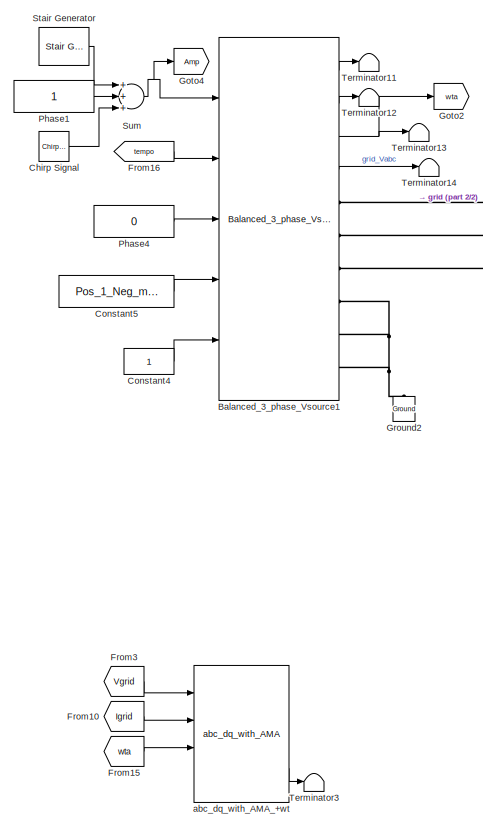
[diagram: root canvas - part 1/2, left side, full height]
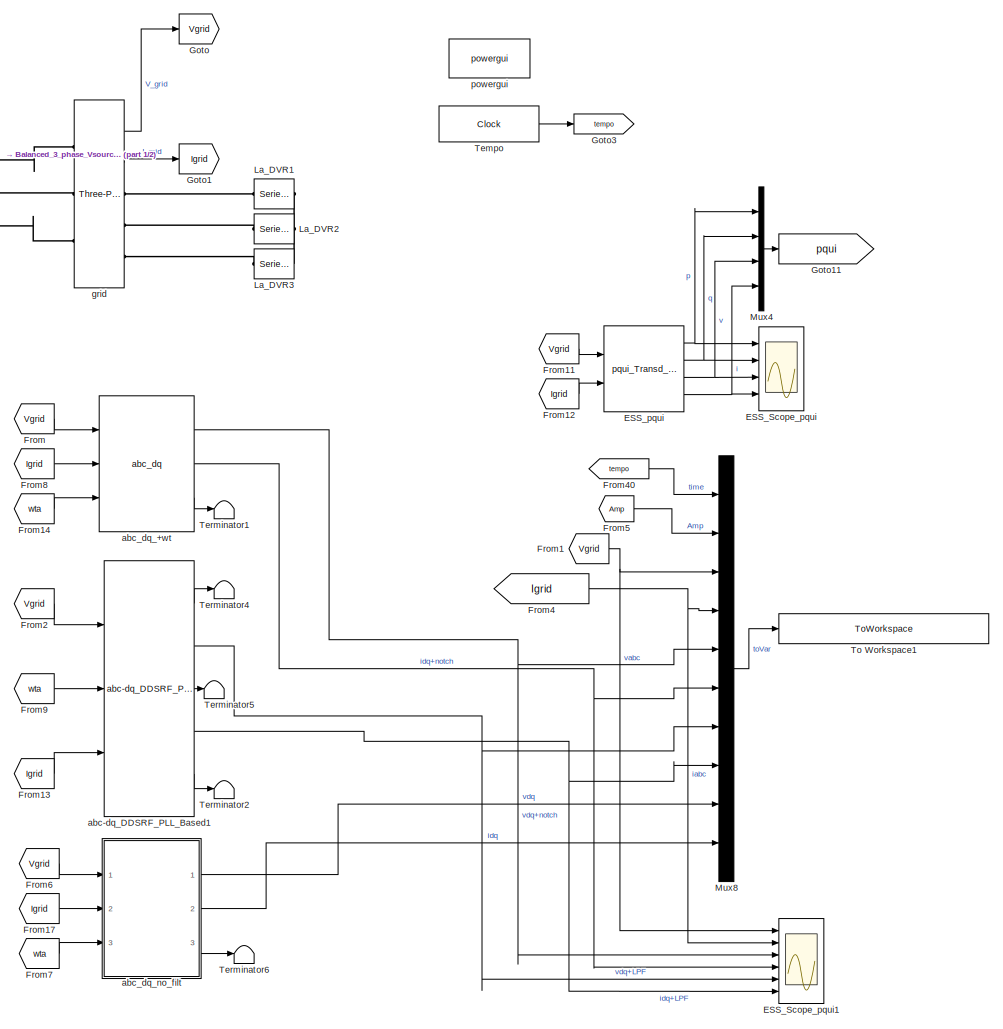
[diagram: root canvas - part 2/2, right side, full height]
MODEL slx_557372324c3f
KIND model
CONFIG AbsTol = auto
CONFIG EnableMultiTasking = off
CONFIG FixedStep = auto
CONFIG MaxStep = auto
CONFIG MinStep = auto
CONFIG RelTol = 1e-3
CONFIG SampleTimeConstraint = Unconstrained
CONFIG Solver = VariableStepAuto
CONFIG SolverName = VariableStepAuto
CONFIG StartTime = 0.0
CONFIG StopTime = Ttot
BLOCK [Reference] Balanced_3_phase_Vsource1  REF=PhD_Library/Offshore_Oil_and_Wind/Balanced_3_phase_Vsource
  Ports = [5, 4, 0, 0, 0, 0, 6]
  SourceBlock = PhD_Library/Offshore_Oil_and_Wind/Balanced_3_phase_Vsource
  SourceType = Three-phase ideal voltage source
BLOCK [Reference] Chirp Signal  REF=simulink/Sources/Chirp Signal
  Commented = on
  Ports = [0, 1]
  SourceBlock = simulink/Sources/Chirp Signal
  SourceProductBaseCode = SL
  SourceProductName = Simulink
  SourceType = chirp
BLOCK [Constant] Constant4
BLOCK [Constant] Constant5
  Value = Pos_1_Neg_minus1
BLOCK [Scope] ESS_Scope_pqui
  Commented = on
  Floating = off
  NumInputPorts = 4
  Ports = [4]
  ScopeSpecificationString = Simulink.scopes.TimeScopeBlockCfg('CurrentConfiguration', extmgr.ConfigurationSet(extmgr.Configuration('Core','General UI',true),extmgr.Configuration('Core','Source UI',true),extmgr.Configuration('Sources','WiredSimulink',true,'DataLoggingVariableName','ScopeData1'),extmgr.Configuration('Visuals','Time Domain',true,'SerializedDisplays',{struct('MinYLimReal','-0.08824','MaxYLimReal','0.13793','YLab...<+1950ch>
BLOCK [Scope] ESS_Scope_pqui1
  Floating = off
  NumInputPorts = 6
  Ports = [6]
  ScopeSpecificationString = Simulink.scopes.TimeScopeBlockCfg('CurrentConfiguration', extmgr.ConfigurationSet(extmgr.Configuration('Core','General UI',true),extmgr.Configuration('Core','Source UI',true),extmgr.Configuration('Sources','WiredSimulink',true,'DataLoggingVariableName','ScopeData1'),extmgr.Configuration('Visuals','Time Domain',true,'SerializedDisplays',{struct('MinYLimReal','-1.23325','MaxYLimReal','1.09928','YLab...<+5782ch>
BLOCK [Reference] ESS_pqui  REF=PhD_Library/Offshore_Oil_and_Wind/pqui_Transd_NoZeroSeq
  Commented = on
  Ports = [2, 4]
  SourceBlock = PhD_Library/Offshore_Oil_and_Wind/pqui_Transd_NoZeroSeq
  SourceType = u i p q transducer - No zero sequence
BLOCK [From] From
  GotoTag = Vgrid
  TagVisibility = global
BLOCK [From] From1
  GotoTag = Vgrid
  TagVisibility = global
BLOCK [From] From10
  Commented = on
  GotoTag = Igrid
  TagVisibility = global
BLOCK [From] From11
  Commented = on
  GotoTag = Vgrid
  TagVisibility = global
BLOCK [From] From12
  Commented = on
  GotoTag = Igrid
  TagVisibility = global
BLOCK [From] From13
  GotoTag = Igrid
  TagVisibility = global
BLOCK [From] From14
  GotoTag = wta
  TagVisibility = global
BLOCK [From] From15
  Commented = on
  GotoTag = wta
  TagVisibility = global
BLOCK [From] From16
  GotoTag = tempo
  TagVisibility = global
BLOCK [From] From17
  GotoTag = Igrid
  TagVisibility = global
BLOCK [From] From2
  GotoTag = Vgrid
  TagVisibility = global
BLOCK [From] From3
  Commented = on
  GotoTag = Vgrid
  TagVisibility = global
BLOCK [From] From4
  GotoTag = Igrid
  TagVisibility = global
BLOCK [From] From40
  GotoTag = tempo
  TagVisibility = global
BLOCK [From] From5
  GotoTag = Amp
  TagVisibility = global
BLOCK [From] From6
  GotoTag = Vgrid
  TagVisibility = global
BLOCK [From] From7
  GotoTag = wta
  TagVisibility = global
BLOCK [From] From8
  GotoTag = Igrid
  TagVisibility = global
BLOCK [From] From9
  GotoTag = wta
  TagVisibility = global
BLOCK [Goto] Goto
  GotoTag = Vgrid
  TagVisibility = global
BLOCK [Goto] Goto1
  GotoTag = Igrid
  TagVisibility = global
BLOCK [Goto] Goto11
  Commented = on
  GotoTag = pqui
BLOCK [Goto] Goto2
  GotoTag = wta
  TagVisibility = global
BLOCK [Goto] Goto3
  GotoTag = tempo
  TagVisibility = global
BLOCK [Goto] Goto4
  GotoTag = Amp
  TagVisibility = global
BLOCK [Reference] Ground2  REF=powerlib/Elements/Ground
  Ports = [0, 0, 0, 0, 0, 1]
  SourceBlock = powerlib/Elements/Ground
  SourceProductBaseCode = PS
  SourceProductName = Simscape Power Systems
  SourceType = Ground
BLOCK [Reference] La_DVR1  REF=powerlib/Elements/Series RLC Branch
  AttributesFormatString = \n
  Ports = [0, 0, 0, 0, 0, 1, 1]
  SourceBlock = powerlib/Elements/Series RLC Branch
  SourceProductBaseCode = PS
  SourceProductName = Simscape Power Systems
  SourceType = Series RLC Branch
BLOCK [Reference] La_DVR2  REF=powerlib/Elements/Series RLC Branch
  AttributesFormatString = \n
  Ports = [0, 0, 0, 0, 0, 1, 1]
  SourceBlock = powerlib/Elements/Series RLC Branch
  SourceProductBaseCode = PS
  SourceProductName = Simscape Power Systems
  SourceType = Series RLC Branch
BLOCK [Reference] La_DVR3  REF=powerlib/Elements/Series RLC Branch
  AttributesFormatString = \n
  Ports = [0, 0, 0, 0, 0, 1, 1]
  SourceBlock = powerlib/Elements/Series RLC Branch
  SourceProductBaseCode = PS
  SourceProductName = Simscape Power Systems
  SourceType = Series RLC Branch
BLOCK [Mux] Mux4
  Commented = on
  DisplayOption = bar
  Ports = [4, 1]
BLOCK [Mux] Mux8
  DisplayOption = bar
  Inputs = 10
  Ports = [10, 1]
BLOCK [Constant] Phase1
  Commented = on
BLOCK [Constant] Phase4
  Value = 0
BLOCK [Reference] Stair Generator  REF=powerlib_meascontrol/Pulse & Signal
Generators/Stair
Generator
  Ports = [0, 1]
  SourceBlock = powerlib_meascontrol/Pulse & Signal\nGenerators/Stair\nGenerator
  SourceProductBaseCode = PS
  SourceProductName = Simscape Power Systems
  SourceType = Stair Generator
BLOCK [Sum] Sum
  InputSameDT = off
  Inputs = +++
  OutDataTypeStr = Inherit: Inherit via internal rule
  Ports = [3, 1]
  SaturateOnIntegerOverflow = off
BLOCK [Clock] Tempo
  Decimation = 1
  DisplayTime = on
BLOCK [Terminator] Terminator1
BLOCK [Terminator] Terminator11
BLOCK [Terminator] Terminator12
BLOCK [Terminator] Terminator13
BLOCK [Terminator] Terminator14
BLOCK [Terminator] Terminator2
BLOCK [Terminator] Terminator3
  Commented = on
BLOCK [Terminator] Terminator4
BLOCK [Terminator] Terminator5
BLOCK [Terminator] Terminator6
BLOCK [ToWorkspace] To Workspace1
  FixptAsFi = on
  MaxDataPoints = inf
  Ports = [1]
  SampleTime = Ts_control
  Save2DSignal = 3-D array (concatenate along third dimension)
  VariableName = PostSubmFreqResp
BLOCK [Reference] abc-dq_DDSRF_PLL_Based1  REF=PhD_Library/Offshore_Oil_and_Wind/abc-dq_DDSRF_PLL_Based
  Ports = [3, 5]
  SourceBlock = PhD_Library/Offshore_Oil_and_Wind/abc-dq_DDSRF_PLL_Based
  SourceType = abc -> dq based on DDSRF PLL
BLOCK [Reference] abc_dq_+wt  REF=PhD_Library/Offshore_Oil_and_Wind/abc_dq
  Ports = [3, 3]
  SourceBlock = PhD_Library/Offshore_Oil_and_Wind/abc_dq
  SourceType = abc->dq with Matlab
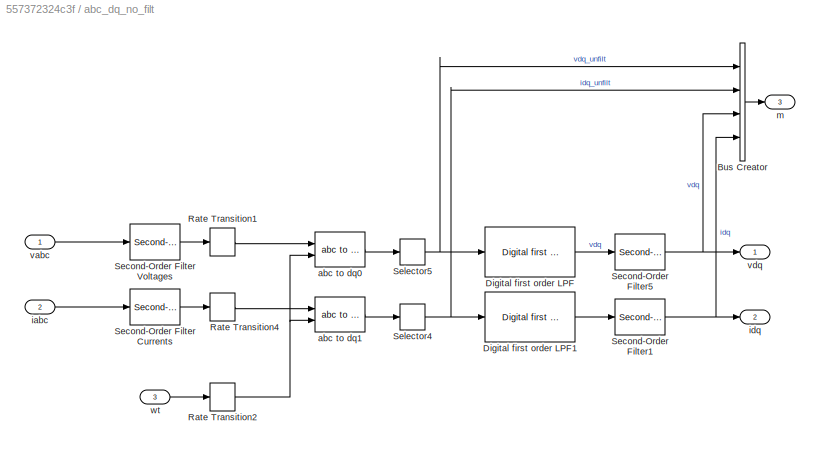
BLOCK [SubSystem] abc_dq_no_filt
  Ports = [3, 3]
  RequestExecContextInheritance = off
BLOCK [BusCreator] abc_dq_no_filt/Bus Creator
  DisplayOption = bar
  InheritFromInputs = on
  Inputs = 4
  Ports = [4, 1]
BLOCK [Reference] abc_dq_no_filt/Digital first order LPF  REF=PhD_Library/Offshore_Oil_and_Wind/Digital first order LPF
  Commented = through
  Ports = [1, 1]
  SourceBlock = PhD_Library/Offshore_Oil_and_Wind/Digital first order LPF
  SourceType = Digital first order low pass filter
BLOCK [Reference] abc_dq_no_filt/Digital first order LPF1  REF=PhD_Library/Offshore_Oil_and_Wind/Digital first order LPF
  Commented = through
  Ports = [1, 1]
  SourceBlock = PhD_Library/Offshore_Oil_and_Wind/Digital first order LPF
  SourceType = Digital first order low pass filter
BLOCK [RateTransition] abc_dq_no_filt/Rate Transition1
  OutPortSampleTime = Ts
BLOCK [RateTransition] abc_dq_no_filt/Rate Transition2
  OutPortSampleTime = Ts
BLOCK [RateTransition] abc_dq_no_filt/Rate Transition4
  OutPortSampleTime = Ts
BLOCK [Reference] abc_dq_no_filt/Second-Order Filter Currents  REF=powerlib_meascontrol/Filters/Second-Order
Filter
  Commented = through
  Ports = [1, 1]
  SourceBlock = powerlib_meascontrol/Filters/Second-Order\nFilter
  SourceProductBaseCode = PS
  SourceProductName = Simscape Power Systems
  SourceType = Second-Order Filter
BLOCK [Reference] abc_dq_no_filt/Second-Order Filter Voltages  REF=powerlib_meascontrol/Filters/Second-Order
Filter
  Commented = through
  Ports = [1, 1]
  SourceBlock = powerlib_meascontrol/Filters/Second-Order\nFilter
  SourceProductBaseCode = PS
  SourceProductName = Simscape Power Systems
  SourceType = Second-Order Filter
BLOCK [Reference] abc_dq_no_filt/Second-Order Filter1  REF=powerlib_meascontrol/Filters/Second-Order
Filter
  Commented = through
  Ports = [1, 1]
  SourceBlock = powerlib_meascontrol/Filters/Second-Order\nFilter
  SourceProductBaseCode = PS
  SourceProductName = Simscape Power Systems
  SourceType = Second-Order Filter
BLOCK [Reference] abc_dq_no_filt/Second-Order Filter5  REF=powerlib_meascontrol/Filters/Second-Order
Filter
  Commented = through
  Ports = [1, 1]
  SourceBlock = powerlib_meascontrol/Filters/Second-Order\nFilter
  SourceProductBaseCode = PS
  SourceProductName = Simscape Power Systems
  SourceType = Second-Order Filter
BLOCK [Selector] abc_dq_no_filt/Selector4
  IndexOptions = Index vector (dialog)
  Indices = [1 2]
  InputPortWidth = 3
  OutputSizes = 1
  Ports = [1, 1]
BLOCK [Selector] abc_dq_no_filt/Selector5
  IndexOptions = Index vector (dialog)
  Indices = [1 2]
  InputPortWidth = 3
  OutputSizes = 1
  Ports = [1, 1]
BLOCK [Reference] abc_dq_no_filt/abc to dq0  REF=powerlib_meascontrol/Transformations/abc to dq0
  Ports = [2, 1]
  SourceBlock = powerlib_meascontrol/Transformations/abc to dq0
  SourceProductBaseCode = PS
  SourceProductName = Simscape Power Systems
  SourceType = abc to dq0 Transformation
BLOCK [Reference] abc_dq_no_filt/abc to dq1  REF=powerlib_meascontrol/Transformations/abc to dq0
  Ports = [2, 1]
  SourceBlock = powerlib_meascontrol/Transformations/abc to dq0
  SourceProductBaseCode = PS
  SourceProductName = Simscape Power Systems
  SourceType = abc to dq0 Transformation
BLOCK [Inport] abc_dq_no_filt/iabc
  IconDisplay = Port number
  Port = 2
BLOCK [Outport] abc_dq_no_filt/idq
  IconDisplay = Port number
  Port = 2
BLOCK [Outport] abc_dq_no_filt/m
  IconDisplay = Port number
  Port = 3
BLOCK [Inport] abc_dq_no_filt/vabc
  IconDisplay = Port number
BLOCK [Outport] abc_dq_no_filt/vdq
  IconDisplay = Port number
BLOCK [Inport] abc_dq_no_filt/wt
  IconDisplay = Port number
  Port = 3
BLOCK [Reference] abc_dq_with_AMA_+wt  REF=PhD_Library/Offshore_Oil_and_Wind/abc_dq_with_AMA
  Commented = on
  Ports = [4, 3]
  SourceBlock = PhD_Library/Offshore_Oil_and_Wind/abc_dq_with_AMA
  SourceType = abc->dq with Matlab
BLOCK [Reference] grid  REF=powerlib/Measurements/Three-Phase
V-I Measurement
  Ports = [0, 2, 0, 0, 0, 3, 3]
  SourceBlock = powerlib/Measurements/Three-Phase\nV-I Measurement
  SourceProductBaseCode = PS
  SourceProductName = Simscape Power Systems
  SourceType = Three-Phase VI Measurement
BLOCK [Reference] powergui  REF=powerlib/powergui
  Ports = []
  Priority = 1
  SourceBlock = powerlib/powergui
  SourceProductBaseCode = PS
  SourceProductName = Simscape Power Systems
  SourceType = PSB option menu block
LINE Balanced_3_phase_Vsource1:1 -> Terminator11:1
LINE Balanced_3_phase_Vsource1:2 -> Terminator12:1
NET Balanced_3_phase_Vsource1:3 -> Goto2:1, Terminator13:1
LINE Balanced_3_phase_Vsource1:4 -> Terminator14:1
LINE Chirp Signal:1 -> Sum:3
LINE Constant4:1 -> Balanced_3_phase_Vsource1:5
LINE Constant5:1 -> Balanced_3_phase_Vsource1:4
NET ESS_pqui:1 -> ESS_Scope_pqui:1, Mux4:1
NET ESS_pqui:2 -> ESS_Scope_pqui:2, Mux4:2
NET ESS_pqui:3 -> ESS_Scope_pqui:3, Mux4:3
NET ESS_pqui:4 -> ESS_Scope_pqui:4, Mux4:4
LINE From10:1 -> abc_dq_with_AMA_+wt:2
LINE From11:1 -> ESS_pqui:1
LINE From12:1 -> ESS_pqui:2
LINE From13:1 -> abc-dq_DDSRF_PLL_Based1:3
LINE From14:1 -> abc_dq_+wt:3
LINE From15:1 -> abc_dq_with_AMA_+wt:3
LINE From16:1 -> Balanced_3_phase_Vsource1:2
LINE From17:1 -> abc_dq_no_filt:2
NET From1:1 -> ESS_Scope_pqui1:1, Mux8:3
LINE From2:1 -> abc-dq_DDSRF_PLL_Based1:1
LINE From3:1 -> abc_dq_with_AMA_+wt:1
LINE From40:1 -> Mux8:1
NET From4:1 -> ESS_Scope_pqui1:2, Mux8:4
LINE From5:1 -> Mux8:2
LINE From6:1 -> abc_dq_no_filt:1
LINE From7:1 -> abc_dq_no_filt:3
LINE From8:1 -> abc_dq_+wt:2
LINE From9:1 -> abc-dq_DDSRF_PLL_Based1:2
LINE From:1 -> abc_dq_+wt:1
LINE Mux4:1 -> Goto11:1
LINE Mux8:1 -> To Workspace1:1
LINE Phase1:1 -> Sum:2
LINE Phase4:1 -> Balanced_3_phase_Vsource1:3
LINE Stair Generator:1 -> Sum:1
NET Sum:1 -> Balanced_3_phase_Vsource1:1, Goto4:1
LINE Tempo:1 -> Goto3:1
LINE abc-dq_DDSRF_PLL_Based1:1 -> Terminator4:1
NET abc-dq_DDSRF_PLL_Based1:2 -> ESS_Scope_pqui1:5, Mux8:7
LINE abc-dq_DDSRF_PLL_Based1:3 -> Terminator5:1
NET abc-dq_DDSRF_PLL_Based1:4 -> ESS_Scope_pqui1:6, Mux8:8
LINE abc-dq_DDSRF_PLL_Based1:5 -> Terminator2:1
NET abc_dq_+wt:1 -> ESS_Scope_pqui1:3, Mux8:5
NET abc_dq_+wt:2 -> ESS_Scope_pqui1:4, Mux8:6
LINE abc_dq_+wt:3 -> Terminator1:1
LINE abc_dq_no_filt/Bus Creator:1 -> abc_dq_no_filt/m:1
LINE abc_dq_no_filt/Digital first order LPF1:1 -> abc_dq_no_filt/Second-Order Filter1:1
LINE abc_dq_no_filt/Digital first order LPF:1 -> abc_dq_no_filt/Second-Order Filter5:1
LINE abc_dq_no_filt/Rate Transition1:1 -> abc_dq_no_filt/abc to dq0:1
NET abc_dq_no_filt/Rate Transition2:1 -> abc_dq_no_filt/abc to dq0:2, abc_dq_no_filt/abc to dq1:2
LINE abc_dq_no_filt/Rate Transition4:1 -> abc_dq_no_filt/abc to dq1:1
LINE abc_dq_no_filt/Second-Order Filter Currents:1 -> abc_dq_no_filt/Rate Transition4:1
LINE abc_dq_no_filt/Second-Order Filter Voltages:1 -> abc_dq_no_filt/Rate Transition1:1
NET abc_dq_no_filt/Second-Order Filter1:1 -> abc_dq_no_filt/Bus Creator:4, abc_dq_no_filt/idq:1
NET abc_dq_no_filt/Second-Order Filter5:1 -> abc_dq_no_filt/Bus Creator:3, abc_dq_no_filt/vdq:1
NET abc_dq_no_filt/Selector4:1 -> abc_dq_no_filt/Bus Creator:2, abc_dq_no_filt/Digital first order LPF1:1
NET abc_dq_no_filt/Selector5:1 -> abc_dq_no_filt/Bus Creator:1, abc_dq_no_filt/Digital first order LPF:1
LINE abc_dq_no_filt/abc to dq0:1 -> abc_dq_no_filt/Selector5:1
LINE abc_dq_no_filt/abc to dq1:1 -> abc_dq_no_filt/Selector4:1
LINE abc_dq_no_filt/iabc:1 -> abc_dq_no_filt/Second-Order Filter Currents:1
LINE abc_dq_no_filt/vabc:1 -> abc_dq_no_filt/Second-Order Filter Voltages:1
LINE abc_dq_no_filt/wt:1 -> abc_dq_no_filt/Rate Transition2:1
LINE abc_dq_no_filt:1 -> Mux8:9
LINE abc_dq_no_filt:2 -> Mux8:10
LINE abc_dq_no_filt:3 -> Terminator6:1
LINE abc_dq_with_AMA_+wt:3 -> Terminator3:1
LINE grid:1 -> Goto:1
LINE grid:2 -> Goto1:1
PLINE Balanced_3_phase_Vsource1:RConn1 -- grid:LConn1
PLINE Balanced_3_phase_Vsource1:RConn2 -- grid:LConn2
PLINE Balanced_3_phase_Vsource1:RConn3 -- grid:LConn3
PNET net1: Balanced_3_phase_Vsource1:RConn4 -- Balanced_3_phase_Vsource1:RConn5 -- Balanced_3_phase_Vsource1:RConn6 -- Ground2:LConn1
PNET net2: La_DVR1:LConn1 -- La_DVR2:LConn1 -- La_DVR3:LConn1
PLINE La_DVR1:RConn1 -- grid:RConn1
PLINE La_DVR2:RConn1 -- grid:RConn2
PLINE La_DVR3:RConn1 -- grid:RConn3
note: NET lines group one-source signal fan-out (src -> all destinations, sorted); 1:1 wires keep LINE; PNET lines group multi-terminal physical nets as a canonical sorted terminal list (undirected conserving connections); 2-terminal nets keep the pairwise PLINE form
